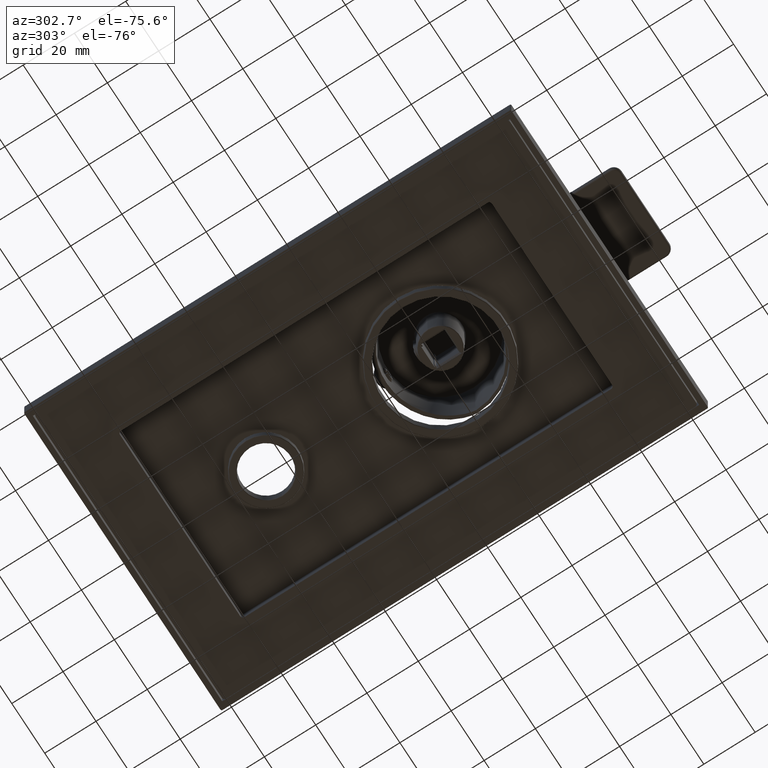
[diagram: clean part render]
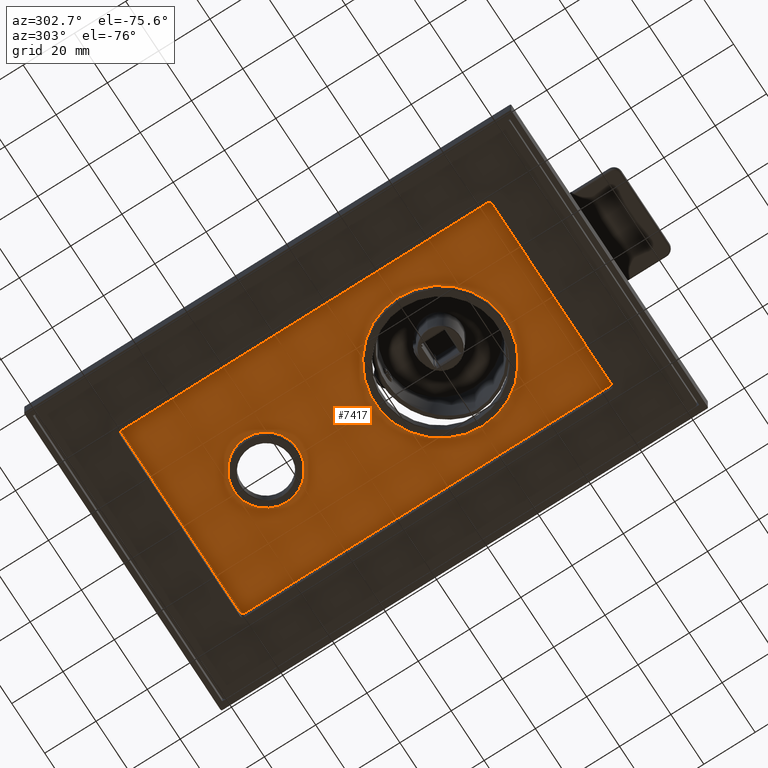
[diagram: same view with one face highlighted and labeled with its STEP entity id]
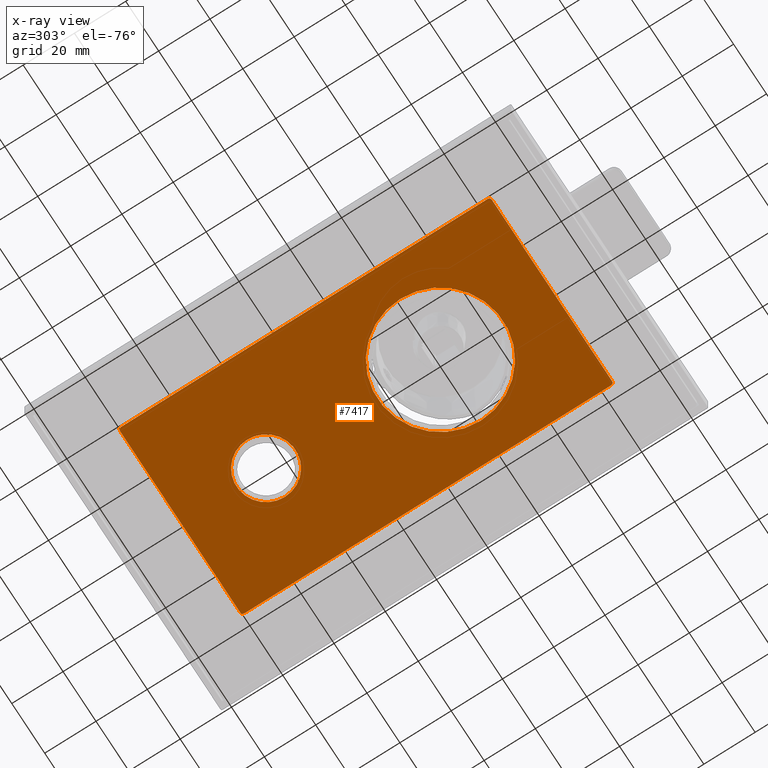
[diagram: x-ray of the same camera — body ghosted, the highlighted face saturated]
A machine part, auxiliary view. The second image highlights one B-rep face of the part: STEP entity #7417.
The next image is the same camera in x-ray: the body ghosted, the highlighted face saturated — about 0% of this face is hidden behind the body in this view.
In plain terms, the highlighted planar face has unit normal (0, 0, 1).
Its self-contained STEP definition (entity closure, byte-faithful):
#5817=DIRECTION('',(1.E0,0.E0,0.E0));
#5818=VECTOR('',#5817,7.3E1);
#5819=CARTESIAN_POINT('',(-3.65E1,1.015E2,-4.5E0));
#5820=LINE('',#5819,#5818);
#5821=CARTESIAN_POINT('',(-3.65E1,1.005E2,-4.5E0));
#5822=DIRECTION('',(0.E0,0.E0,1.E0));
#5823=DIRECTION('',(0.E0,1.E0,0.E0));
#5824=AXIS2_PLACEMENT_3D('',#5821,#5822,#5823);
#5826=DIRECTION('',(0.E0,1.E0,0.E0));
#5827=VECTOR('',#5826,1.43E2);
#5828=CARTESIAN_POINT('',(-3.75E1,-4.25E1,-4.5E0));
#5829=LINE('',#5828,#5827);
#5830=CARTESIAN_POINT('',(-3.65E1,-4.25E1,-4.5E0));
#5831=DIRECTION('',(0.E0,0.E0,1.E0));
#5832=DIRECTION('',(-1.E0,0.E0,0.E0));
#5833=AXIS2_PLACEMENT_3D('',#5830,#5831,#5832);
#5835=DIRECTION('',(-1.E0,0.E0,0.E0));
#5836=VECTOR('',#5835,7.3E1);
#5837=CARTESIAN_POINT('',(3.65E1,-4.35E1,-4.5E0));
#5838=LINE('',#5837,#5836);
#5839=CARTESIAN_POINT('',(3.65E1,-4.25E1,-4.5E0));
#5840=DIRECTION('',(0.E0,0.E0,1.E0));
#5841=DIRECTION('',(0.E0,-1.E0,0.E0));
#5842=AXIS2_PLACEMENT_3D('',#5839,#5840,#5841);
#5844=DIRECTION('',(0.E0,-1.E0,0.E0));
#5845=VECTOR('',#5844,1.43E2);
#5846=CARTESIAN_POINT('',(3.75E1,1.005E2,-4.5E0));
#5847=LINE('',#5846,#5845);
#5848=CARTESIAN_POINT('',(3.65E1,1.005E2,-4.5E0));
#5849=DIRECTION('',(0.E0,0.E0,1.E0));
#5850=DIRECTION('',(1.E0,0.E0,0.E0));
#5851=AXIS2_PLACEMENT_3D('',#5848,#5849,#5850);
#5853=CARTESIAN_POINT('',(0.E0,6.8E1,-4.5E0));
#5854=DIRECTION('',(0.E0,0.E0,1.E0));
#5855=DIRECTION('',(1.E0,0.E0,0.E0));
#5856=AXIS2_PLACEMENT_3D('',#5853,#5854,#5855);
#5858=CARTESIAN_POINT('',(0.E0,6.8E1,-4.5E0));
#5859=DIRECTION('',(0.E0,0.E0,1.E0));
#5860=DIRECTION('',(-1.E0,0.E0,0.E0));
#5861=AXIS2_PLACEMENT_3D('',#5858,#5859,#5860);
#5863=CARTESIAN_POINT('',(0.E0,0.E0,-4.5E0));
#5864=DIRECTION('',(0.E0,0.E0,1.E0));
#5865=DIRECTION('',(1.E0,0.E0,0.E0));
#5866=AXIS2_PLACEMENT_3D('',#5863,#5864,#5865);
#5868=CARTESIAN_POINT('',(0.E0,0.E0,-4.5E0));
#5869=DIRECTION('',(0.E0,0.E0,1.E0));
#5870=DIRECTION('',(-1.E0,0.E0,0.E0));
#5871=AXIS2_PLACEMENT_3D('',#5868,#5869,#5870);
#6264=CARTESIAN_POINT('',(1.15E1,6.8E1,-4.5E0));
#6265=CARTESIAN_POINT('',(-1.15E1,6.8E1,-4.5E0));
#6266=VERTEX_POINT('',#6264);
#6267=VERTEX_POINT('',#6265);
#6268=CARTESIAN_POINT('',(2.45E1,0.E0,-4.5E0));
#6269=CARTESIAN_POINT('',(-2.45E1,0.E0,-4.5E0));
#6270=VERTEX_POINT('',#6268);
#6271=VERTEX_POINT('',#6269);
#6444=CARTESIAN_POINT('',(-3.65E1,1.015E2,-4.5E0));
#6445=CARTESIAN_POINT('',(3.65E1,1.015E2,-4.5E0));
#6446=VERTEX_POINT('',#6444);
#6447=VERTEX_POINT('',#6445);
#6448=CARTESIAN_POINT('',(3.75E1,1.005E2,-4.5E0));
#6449=CARTESIAN_POINT('',(3.75E1,-4.25E1,-4.5E0));
#6450=VERTEX_POINT('',#6448);
#6451=VERTEX_POINT('',#6449);
#6452=CARTESIAN_POINT('',(3.65E1,-4.35E1,-4.5E0));
#6453=CARTESIAN_POINT('',(-3.65E1,-4.35E1,-4.5E0));
#6454=VERTEX_POINT('',#6452);
#6455=VERTEX_POINT('',#6453);
#6456=CARTESIAN_POINT('',(-3.75E1,-4.25E1,-4.5E0));
#6457=CARTESIAN_POINT('',(-3.75E1,1.005E2,-4.5E0));
#6458=VERTEX_POINT('',#6456);
#6459=VERTEX_POINT('',#6457);
#7383=CARTESIAN_POINT('',(0.E0,2.9E1,-4.5E0));
#7384=DIRECTION('',(0.E0,0.E0,1.E0));
#7385=DIRECTION('',(-1.E0,0.E0,0.E0));
#7386=AXIS2_PLACEMENT_3D('',#7383,#7384,#7385);
#7387=PLANE('',#7386);
#7388=ORIENTED_EDGE('',*,*,#7366,.F.);
#7390=ORIENTED_EDGE('',*,*,#7389,.T.);
#7392=ORIENTED_EDGE('',*,*,#7391,.F.);
#7394=ORIENTED_EDGE('',*,*,#7393,.T.);
#7396=ORIENTED_EDGE('',*,*,#7395,.F.);
#7398=ORIENTED_EDGE('',*,*,#7397,.T.);
#7400=ORIENTED_EDGE('',*,*,#7399,.F.);
#7402=ORIENTED_EDGE('',*,*,#7401,.T.);
#7403=EDGE_LOOP('',(#7388,#7390,#7392,#7394,#7396,#7398,#7400,#7402));
#7404=FACE_OUTER_BOUND('',#7403,.F.);
#7406=ORIENTED_EDGE('',*,*,#7405,.F.);
#7408=ORIENTED_EDGE('',*,*,#7407,.F.);
#7409=EDGE_LOOP('',(#7406,#7408));
#7410=FACE_BOUND('',#7409,.F.);
#7412=ORIENTED_EDGE('',*,*,#7411,.F.);
#7414=ORIENTED_EDGE('',*,*,#7413,.F.);
#7415=EDGE_LOOP('',(#7412,#7414));
#7416=FACE_BOUND('',#7415,.F.);
#7417=ADVANCED_FACE('',(#7404,#7410,#7416),#7387,.F.);
#5825=CIRCLE('',#5824,1.E0);
#5834=CIRCLE('',#5833,1.E0);
#5843=CIRCLE('',#5842,1.E0);
#5852=CIRCLE('',#5851,1.E0);
#5857=CIRCLE('',#5856,1.15E1);
#5862=CIRCLE('',#5861,1.15E1);
#5867=CIRCLE('',#5866,2.45E1);
#5872=CIRCLE('',#5871,2.45E1);
#7366=EDGE_CURVE('',#6446,#6447,#5820,.T.);
#7389=EDGE_CURVE('',#6446,#6459,#5825,.T.);
#7391=EDGE_CURVE('',#6458,#6459,#5829,.T.);
#7393=EDGE_CURVE('',#6458,#6455,#5834,.T.);
#7395=EDGE_CURVE('',#6454,#6455,#5838,.T.);
#7397=EDGE_CURVE('',#6454,#6451,#5843,.T.);
#7399=EDGE_CURVE('',#6450,#6451,#5847,.T.);
#7401=EDGE_CURVE('',#6450,#6447,#5852,.T.);
#7405=EDGE_CURVE('',#6266,#6267,#5857,.T.);
#7407=EDGE_CURVE('',#6267,#6266,#5862,.T.);
#7411=EDGE_CURVE('',#6270,#6271,#5867,.T.);
#7413=EDGE_CURVE('',#6271,#6270,#5872,.T.);